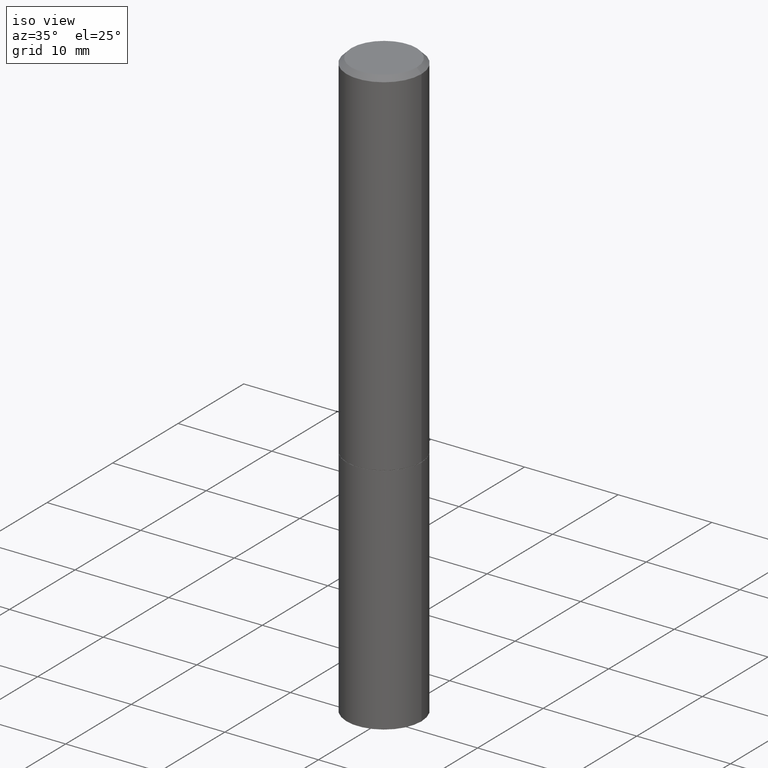
[diagram: clean part render]
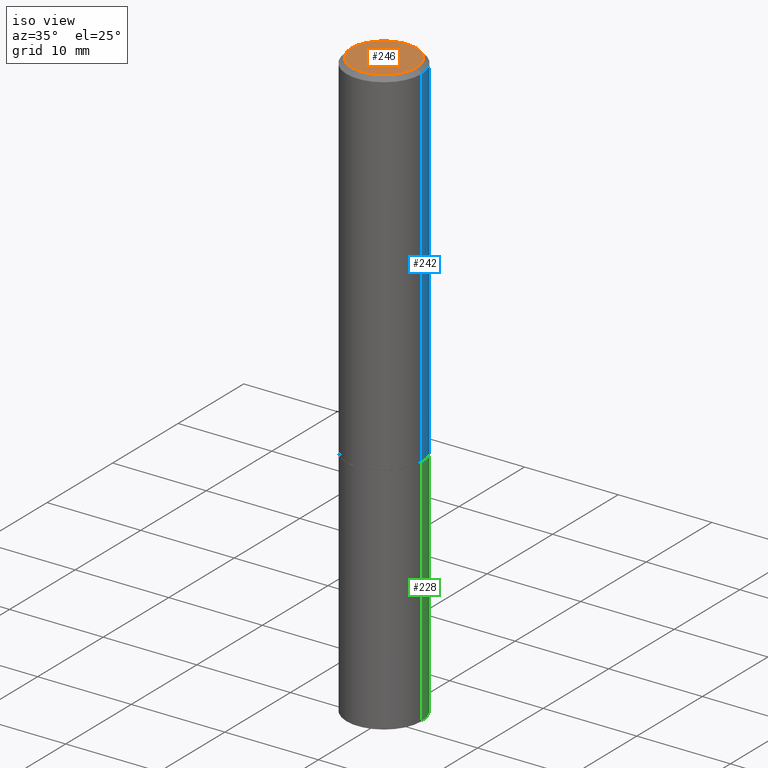
[diagram: same view with three faces highlighted in distinct colors, each labeled with its STEP entity id]
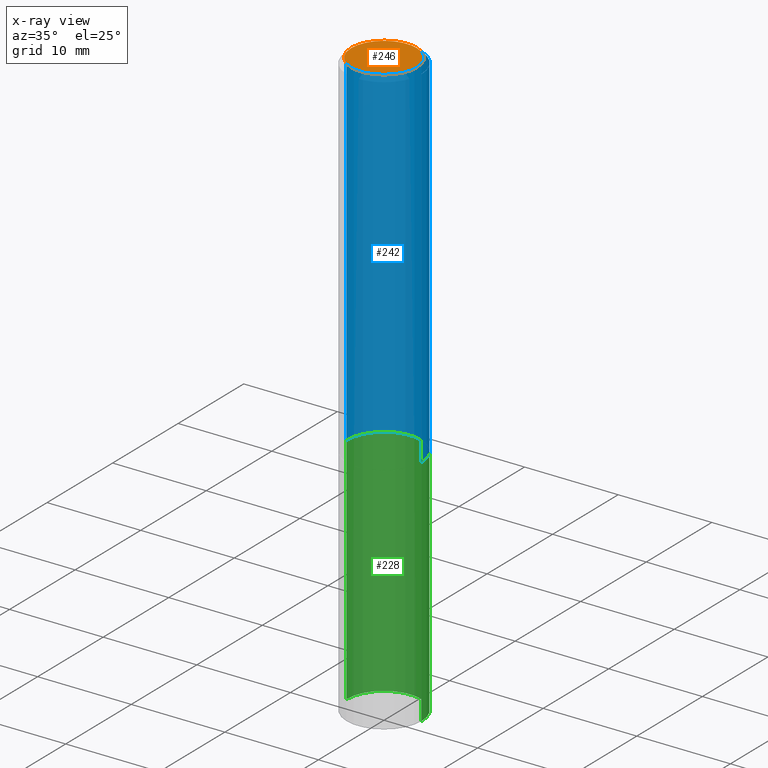
[diagram: x-ray of the same camera — body ghosted, the three highlighted faces saturated]
A machine part, iso view with three faces highlighted in distinct colors.
The next image is the same camera in x-ray (body ghosted, the three faces saturated) — at least one of them is partly hidden behind the body in this view.
Their STEP definitions:

[orange] entity #246 — the highlighted planar face has unit normal (0, -0, -1).
#14 = CIRCLE ( 'NONE', #275, 0.1374999999999998446 ) ;
#15 = DIRECTION ( 'NONE',  ( 2.438088387897960049E-29, -3.491481338843145188E-15, -1.000000000000000000 ) ) ;
#24 = EDGE_CURVE ( 'NONE', #338, #307, #137, .T. ) ;
#48 = AXIS2_PLACEMENT_3D ( 'NONE', #274, #15, #354 ) ;
#88 = DIRECTION ( 'NONE',  ( -2.445468806185136597E-29, 3.491481338843145583E-15, 1.000000000000000000 ) ) ;
#90 = ORIENTED_EDGE ( 'NONE', *, *, #24, .T. ) ;
#134 = DIRECTION ( 'NONE',  ( 1.000000000000000000, -6.982962677686265922E-15, 4.876173381029105647E-29 ) ) ;
#137 = CIRCLE ( 'NONE', #309, 0.1374999999999998446 ) ;
#158 = CARTESIAN_POINT ( 'NONE',  ( 0.1374999999999998446, -1.046838268059731308E-15, 8.537024980207840646E-18 ) ) ;
#195 = CARTESIAN_POINT ( 'NONE',  ( -2.087702828670439639E-46, 2.980686340760894400E-32, 8.537024980200822558E-18 ) ) ;
#210 = PLANE ( 'NONE',  #48 ) ;
#230 = CARTESIAN_POINT ( 'NONE',  ( -2.087702828670439639E-46, 2.980686340760894400E-32, 8.537024980200822558E-18 ) ) ;
#246 = ADVANCED_FACE ( 'NONE', ( #330 ), #210, .F. ) ;
#248 = CARTESIAN_POINT ( 'NONE',  ( -0.1374999999999998446, 9.950721815702915469E-16, 8.537024980193986277E-18 ) ) ;
#274 = CARTESIAN_POINT ( 'NONE',  ( 9.601573681818602922E-16, 0.1374999999999998446, -4.758101716008314943E-16 ) ) ;
#275 = AXIS2_PLACEMENT_3D ( 'NONE', #195, #306, #134 ) ;
#306 = DIRECTION ( 'NONE',  ( -2.445468806185136597E-29, 3.491481338843145583E-15, 1.000000000000000000 ) ) ;
#307 = VERTEX_POINT ( 'NONE', #158 ) ;
#309 = AXIS2_PLACEMENT_3D ( 'NONE', #230, #88, #321 ) ;
#315 = EDGE_LOOP ( 'NONE', ( #90, #360 ) ) ;
#321 = DIRECTION ( 'NONE',  ( 1.000000000000000000, -6.982962677686265922E-15, 4.876173381029105647E-29 ) ) ;
#330 = FACE_OUTER_BOUND ( 'NONE', #315, .T. ) ;
#338 = VERTEX_POINT ( 'NONE', #248 ) ;
#354 = DIRECTION ( 'NONE',  ( -1.000000000000000000, 6.982962677686265922E-15, -4.876176775795935793E-29 ) ) ;
#355 = EDGE_CURVE ( 'NONE', #307, #338, #14, .T. ) ;
#360 = ORIENTED_EDGE ( 'NONE', *, *, #355, .T. ) ;

[blue] entity #242 — the highlighted cylindrical surface (partial cylindrical patch) has radius 4.0005 mm, axis along (-0, 0, 1).
#11 = CARTESIAN_POINT ( 'NONE',  ( 3.655975865246779683E-29, -5.219764601570503930E-15, -1.495000000000000329 ) ) ;
#13 = AXIS2_PLACEMENT_3D ( 'NONE', #268, #129, #272 ) ;
#25 = VERTEX_POINT ( 'NONE', #62 ) ;
#28 = ORIENTED_EDGE ( 'NONE', *, *, #103, .F. ) ;
#37 = CARTESIAN_POINT ( 'NONE',  ( -0.1575000000000000011, -1.525692305351524236E-15, -1.495000000000000329 ) ) ;
#60 = DIRECTION ( 'NONE',  ( -2.445468806185136877E-29, 3.491481338843145188E-15, 1.000000000000000000 ) ) ;
#62 = CARTESIAN_POINT ( 'NONE',  ( -0.1574999999999998346, 1.029986994958722604E-15, -0.02000000000000003511 ) ) ;
#68 = FACE_OUTER_BOUND ( 'NONE', #225, .T. ) ;
#91 = ORIENTED_EDGE ( 'NONE', *, *, #232, .F. ) ;
#95 = DIRECTION ( 'NONE',  ( 1.000000000000000000, -6.982962677686265922E-15, 0.000000000000000000 ) ) ;
#98 = CARTESIAN_POINT ( 'NONE',  ( 0.1575000000000000011, -6.319581223306091410E-15, -1.495000000000000329 ) ) ;
#100 = CARTESIAN_POINT ( 'NONE',  ( 4.890937612370281041E-31, -6.982962677686302702E-17, -0.02000000000000003511 ) ) ;
#103 = EDGE_CURVE ( 'NONE', #220, #305, #204, .T. ) ;
#119 = LINE ( 'NONE', #235, #325 ) ;
#126 = DIRECTION ( 'NONE',  ( -2.445468806185136597E-29, 3.491481338843145583E-15, 1.000000000000000000 ) ) ;
#129 = DIRECTION ( 'NONE',  ( -2.445468806185136597E-29, 3.491481338843145583E-15, 1.000000000000000000 ) ) ;
#141 = VERTEX_POINT ( 'NONE', #37 ) ;
#162 = EDGE_CURVE ( 'NONE', #141, #25, #119, .T. ) ;
#183 = DIRECTION ( 'NONE',  ( -2.445468806185136877E-29, 3.491481338843145188E-15, 1.000000000000000000 ) ) ;
#189 = DIRECTION ( 'NONE',  ( 1.000000000000000000, -6.982962677686268288E-15, 0.000000000000000000 ) ) ;
#197 = AXIS2_PLACEMENT_3D ( 'NONE', #11, #239, #189 ) ;
#202 = AXIS2_PLACEMENT_3D ( 'NONE', #100, #126, #95 ) ;
#204 = LINE ( 'NONE', #231, #302 ) ;
#208 = CIRCLE ( 'NONE', #202, 0.1574999999999998346 ) ;
#215 = CYLINDRICAL_SURFACE ( 'NONE', #13, 0.1574999999999998901 ) ;
#220 = VERTEX_POINT ( 'NONE', #98 ) ;
#225 = EDGE_LOOP ( 'NONE', ( #336, #310, #91, #28 ) ) ;
#231 = CARTESIAN_POINT ( 'NONE',  ( 0.1574999999999998901, -1.099816621735586297E-15, 7.679978421878593829E-30 ) ) ;
#232 = EDGE_CURVE ( 'NONE', #305, #25, #208, .T. ) ;
#235 = CARTESIAN_POINT ( 'NONE',  ( -0.1574999999999998901, 1.119104808822157012E-15, -7.747322767151471379E-30 ) ) ;
#239 = DIRECTION ( 'NONE',  ( -2.445468806185136597E-29, 3.491481338843145583E-15, 1.000000000000000000 ) ) ;
#242 = ADVANCED_FACE ( 'NONE', ( #68 ), #215, .T. ) ;
#268 = CARTESIAN_POINT ( 'NONE',  ( 0.000000000000000000, 0.000000000000000000, 0.000000000000000000 ) ) ;
#272 = DIRECTION ( 'NONE',  ( 1.000000000000000000, -6.982962677686266711E-15, 4.876176775795935793E-29 ) ) ;
#294 = CARTESIAN_POINT ( 'NONE',  ( 0.1574999999999998346, -1.150358061425878091E-15, -0.02000000000000003511 ) ) ;
#302 = VECTOR ( 'NONE', #183, 39.37007874015748143 ) ;
#305 = VERTEX_POINT ( 'NONE', #294 ) ;
#310 = ORIENTED_EDGE ( 'NONE', *, *, #162, .T. ) ;
#318 = EDGE_CURVE ( 'NONE', #220, #141, #357, .T. ) ;
#325 = VECTOR ( 'NONE', #60, 39.37007874015748143 ) ;
#336 = ORIENTED_EDGE ( 'NONE', *, *, #318, .T. ) ;
#357 = CIRCLE ( 'NONE', #197, 0.1575000000000000011 ) ;

[green] entity #228 — the highlighted cylindrical surface (partial cylindrical patch) has radius 4.0005 mm, axis along (-0, 0, 1).
#8 = AXIS2_PLACEMENT_3D ( 'NONE', #71, #187, #299 ) ;
#18 = CYLINDRICAL_SURFACE ( 'NONE', #297, 0.1575000000000000011 ) ;
#32 = DIRECTION ( 'NONE',  ( -2.445468806185136877E-29, 3.491481338843145188E-15, 1.000000000000000000 ) ) ;
#35 = LINE ( 'NONE', #86, #214 ) ;
#58 = ORIENTED_EDGE ( 'NONE', *, *, #97, .F. ) ;
#61 = AXIS2_PLACEMENT_3D ( 'NONE', #314, #145, #324 ) ;
#71 = CARTESIAN_POINT ( 'NONE',  ( 3.658421334052965286E-29, -5.223256082909346937E-15, -1.496000000000000441 ) ) ;
#74 = DIRECTION ( 'NONE',  ( -2.445468806185136877E-29, 3.491481338843145188E-15, 1.000000000000000000 ) ) ;
#80 = VERTEX_POINT ( 'NONE', #290 ) ;
#81 = VERTEX_POINT ( 'NONE', #117 ) ;
#82 = ORIENTED_EDGE ( 'NONE', *, *, #293, .F. ) ;
#86 = CARTESIAN_POINT ( 'NONE',  ( 0.1575000000000000011, -1.099816621735586889E-15, 7.679978421878598033E-30 ) ) ;
#97 = EDGE_CURVE ( 'NONE', #81, #362, #35, .T. ) ;
#102 = ORIENTED_EDGE ( 'NONE', *, *, #287, .T. ) ;
#112 = ORIENTED_EDGE ( 'NONE', *, *, #133, .T. ) ;
#117 = CARTESIAN_POINT ( 'NONE',  ( 0.1575000000000000011, -9.759737786468242027E-15, -2.480300000000000171 ) ) ;
#133 = EDGE_CURVE ( 'NONE', #81, #80, #291, .T. ) ;
#145 = DIRECTION ( 'NONE',  ( -2.445468806185136597E-29, 3.491481338843145583E-15, 1.000000000000000000 ) ) ;
#150 = CIRCLE ( 'NONE', #8, 0.1575000000000000011 ) ;
#187 = DIRECTION ( 'NONE',  ( -2.445468806185136597E-29, 3.491481338843145583E-15, 1.000000000000000000 ) ) ;
#188 = CARTESIAN_POINT ( 'NONE',  ( 0.000000000000000000, 0.000000000000000000, 0.000000000000000000 ) ) ;
#212 = DIRECTION ( 'NONE',  ( -2.445468806185136597E-29, 3.491481338843145583E-15, 1.000000000000000000 ) ) ;
#214 = VECTOR ( 'NONE', #32, 39.37007874015748143 ) ;
#219 = CARTESIAN_POINT ( 'NONE',  ( 0.1575000000000000011, -6.323072704644934417E-15, -1.496000000000000441 ) ) ;
#221 = VECTOR ( 'NONE', #74, 39.37007874015748143 ) ;
#228 = ADVANCED_FACE ( 'NONE', ( #301 ), #18, .T. ) ;
#244 = CARTESIAN_POINT ( 'NONE',  ( -0.1575000000000000011, -5.822483814998842744E-15, -1.496000000000000441 ) ) ;
#259 = EDGE_LOOP ( 'NONE', ( #112, #102, #82, #58 ) ) ;
#277 = VERTEX_POINT ( 'NONE', #244 ) ;
#287 = EDGE_CURVE ( 'NONE', #80, #277, #331, .T. ) ;
#290 = CARTESIAN_POINT ( 'NONE',  ( -0.1575000000000000011, -5.822483814998842744E-15, -2.480300000000000171 ) ) ;
#291 = CIRCLE ( 'NONE', #61, 0.1575000000000000011 ) ;
#293 = EDGE_CURVE ( 'NONE', #362, #277, #150, .T. ) ;
#297 = AXIS2_PLACEMENT_3D ( 'NONE', #188, #212, #353 ) ;
#299 = DIRECTION ( 'NONE',  ( 1.000000000000000000, -6.982962677686268288E-15, 0.000000000000000000 ) ) ;
#301 = FACE_OUTER_BOUND ( 'NONE', #259, .T. ) ;
#314 = CARTESIAN_POINT ( 'NONE',  ( 6.065496279980994755E-29, -8.659921164732655335E-15, -2.480300000000000171 ) ) ;
#324 = DIRECTION ( 'NONE',  ( 1.000000000000000000, -6.982962677686261977E-15, 0.000000000000000000 ) ) ;
#328 = CARTESIAN_POINT ( 'NONE',  ( -0.1575000000000000011, 1.119104808822157801E-15, -7.747322767151475583E-30 ) ) ;
#331 = LINE ( 'NONE', #328, #221 ) ;
#353 = DIRECTION ( 'NONE',  ( 1.000000000000000000, -6.982962677686265922E-15, 4.876176775795935232E-29 ) ) ;
#362 = VERTEX_POINT ( 'NONE', #219 ) ;